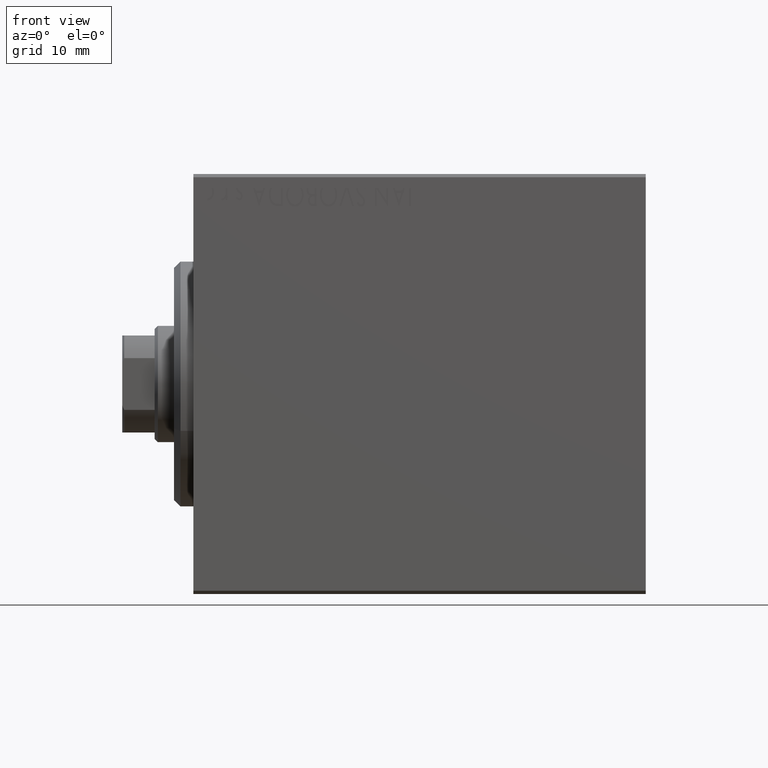
[diagram: clean part render]
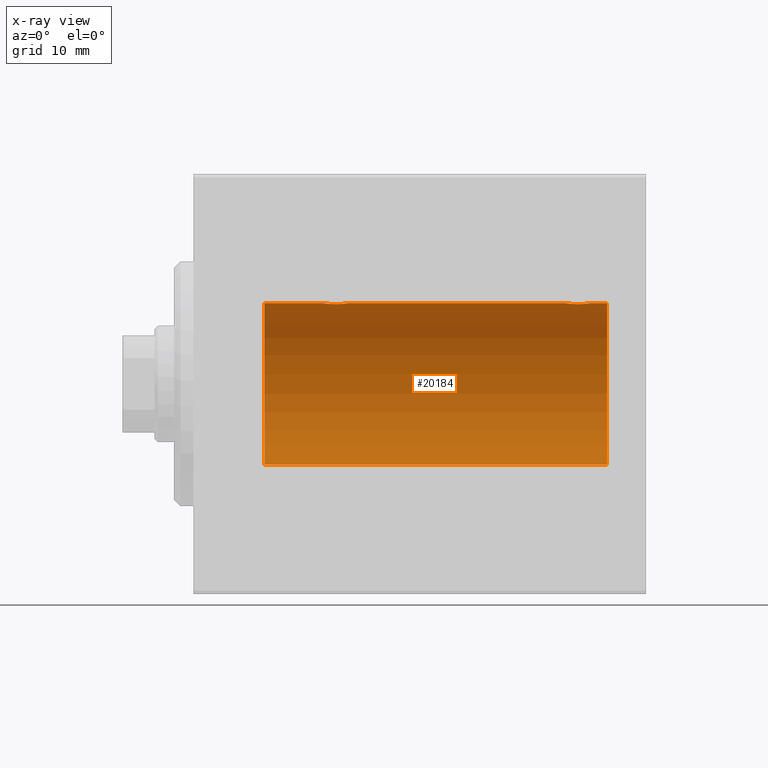
[diagram: x-ray — body ghosted, one internal face saturated and labeled with its STEP entity id]
A machine part, front view, then the same camera in x-ray: the body is ghosted and one INTERNAL B-rep face — a face not visible from any outside direction — is saturated and labeled: STEP entity #20184.
In plain terms, the highlighted cylindrical surface (partial cylindrical patch) has radius 12.5 mm, axis along (-1, -0, -0).
Its self-contained STEP definition (entity closure, byte-faithful):
#36 = CARTESIAN_POINT ( 'NONE',  ( 20.67897166499301775, 1.507394620545639441, 12.40913174964213361 ) ) ;
#251 = CARTESIAN_POINT ( 'NONE',  ( 20.78019209405420042, 1.590288205413970646, 12.39864157855465088 ) ) ;
#982 = CARTESIAN_POINT ( 'NONE',  ( 64.00000000000000000, 1.530808498934191521E-15, -12.50000000000000000 ) ) ;
#1736 = CARTESIAN_POINT ( 'NONE',  ( 59.23730537545403507, 1.986986967296537676, 12.34109209020652820 ) ) ;
#1955 = CARTESIAN_POINT ( 'NONE',  ( 58.85584766229707299, 1.897967064543087279, 12.35517291625592229 ) ) ;
#2589 = VERTEX_POINT ( 'NONE', #37533 ) ;
#2672 = ORIENTED_EDGE ( 'NONE', *, *, #18859, .T. ) ;
#2686 = ORIENTED_EDGE ( 'NONE', *, *, #41757, .F. ) ;
#2931 = CARTESIAN_POINT ( 'NONE',  ( 21.35584766229706588, 1.897967064543088833, 12.35517291625592051 ) ) ;
#3086 = VERTEX_POINT ( 'NONE', #982 ) ;
#3509 = CIRCLE ( 'NONE', #17038, 12.50000000000000000 ) ;
#3560 = VERTEX_POINT ( 'NONE', #8339 ) ;
#3665 = CARTESIAN_POINT ( 'NONE',  ( 24.00000000000000000, -4.527848004210791175E-16, 12.50000000000000000 ) ) ;
#4483 = DIRECTION ( 'NONE',  ( -1.000000000000000000, -0.000000000000000000, -0.000000000000000000 ) ) ;
#4697 = CARTESIAN_POINT ( 'NONE',  ( 10.99999999999999645, 1.530808498934191521E-15, -12.50000000000000000 ) ) ;
#4744 = CARTESIAN_POINT ( 'NONE',  ( 19.99999999999999645, -7.265724481447607133E-23, 12.50000000000000000 ) ) ;
#5083 = CARTESIAN_POINT ( 'NONE',  ( 58.61343686466983627, 1.797558627508994089, 12.37018026341338484 ) ) ;
#5196 = B_SPLINE_CURVE_WITH_KNOTS ( 'NONE', 3,
 ( #10059, #33631, #6943, #26972, #27405, #20733, #37192, #20511, #41183, #40962, #43867, #27628, #6277, #34072, #30518, #16948, #2931, #10275, #13623, #251, #36, #17170, #23625, #17388, #6723, #30739, #33399, #27191, #40518, #30080 ),
 .UNSPECIFIED., .F., .F.,
 ( 4, 2, 2, 2, 2, 2, 2, 2, 2, 2, 2, 2, 2, 2, 4 ),
 ( 4.399147420600248434E-19, 0.0003914362731607583874, 0.0007828725463215163412, 0.001174308819482274349, 0.001565745092643032249, 0.002348617638964548265, 0.003131490185286064497, 0.003522926458446828252, 0.003914362731607592440, 0.004305799004768355760, 0.004697235277929119081, 0.005088671551089882401, 0.005480107824250645722, 0.005871544097411409910, 0.006262980370572172363 ),
 .UNSPECIFIED. ) ;
#5310 = CARTESIAN_POINT ( 'NONE',  ( 58.17897166499302841, 1.507394620545639219, 12.40913174964213539 ) ) ;
#6040 = VECTOR ( 'NONE', #43684, 1000.000000000000000 ) ;
#6277 = CARTESIAN_POINT ( 'NONE',  ( 22.26211806331624743, 1.999901172190676757, 12.33897869807161563 ) ) ;
#6723 = CARTESIAN_POINT ( 'NONE',  ( 20.20257508083844300, 0.8868029758979382171, 12.46909283808506430 ) ) ;
#6895 = CARTESIAN_POINT ( 'NONE',  ( 61.29699211628619793, 0.8876934327478148701, 12.46903010196599659 ) ) ;
#6943 = CARTESIAN_POINT ( 'NONE',  ( 23.98698791483650794, 0.2624928479599913378, 12.49789934882883458 ) ) ;
#7108 = CARTESIAN_POINT ( 'NONE',  ( 61.00601633672791024, 1.322451657002079006, 12.43019346654084956 ) ) ;
#7542 = ORIENTED_EDGE ( 'NONE', *, *, #34732, .T. ) ;
#7773 = LINE ( 'NONE', #28021, #39864 ) ;
#7805 = CARTESIAN_POINT ( 'NONE',  ( 64.00000000000000000, 0.000000000000000000, 0.000000000000000000 ) ) ;
#8339 = CARTESIAN_POINT ( 'NONE',  ( 64.00000000000000000, 0.000000000000000000, 12.50000000000000000 ) ) ;
#8416 = CARTESIAN_POINT ( 'NONE',  ( 57.51309615233746086, 0.2633501011236094591, 12.49788564268283864 ) ) ;
#8857 = CARTESIAN_POINT ( 'NONE',  ( 57.56438225478149917, 0.5201193324741324453, 12.48983485452574982 ) ) ;
#8925 = CARTESIAN_POINT ( 'NONE',  ( 10.99999999999999645, 0.000000000000000000, 0.000000000000000000 ) ) ;
#8967 = EDGE_CURVE ( 'NONE', #21843, #2589, #15239, .T. ) ;
#9365 = DIRECTION ( 'NONE',  ( -1.000000000000000000, -0.000000000000000000, -0.000000000000000000 ) ) ;
#10059 = CARTESIAN_POINT ( 'NONE',  ( 24.00000000000000000, -4.527848004210791175E-16, 12.50000000000000000 ) ) ;
#10275 = CARTESIAN_POINT ( 'NONE',  ( 21.11343686466984693, 1.797558627508996532, 12.37018026341339194 ) ) ;
#10938 = DIRECTION ( 'NONE',  ( 0.000000000000000000, 0.000000000000000000, 1.000000000000000000 ) ) ;
#11761 = CARTESIAN_POINT ( 'NONE',  ( 57.60226968606340847, 0.6448065707253002321, 12.48394649977301540 ) ) ;
#13623 = CARTESIAN_POINT ( 'NONE',  ( 20.99664185700817498, 1.734998657226762386, 12.37922086519035680 ) ) ;
#13794 = CARTESIAN_POINT ( 'NONE',  ( 61.50000000000000711, 0.1323736289504353347, 12.50000000000000178 ) ) ;
#14231 = CARTESIAN_POINT ( 'NONE',  ( 61.48698791483653281, 0.2624928479599922815, 12.49789934882883458 ) ) ;
#15103 = CARTESIAN_POINT ( 'NONE',  ( 59.37007370639736337, 2.000049200055400878, 12.33895470450623222 ) ) ;
#15211 = VERTEX_POINT ( 'NONE', #19873 ) ;
#15239 = B_SPLINE_CURVE_WITH_KNOTS ( 'NONE', 3,
 ( #37367, #13794, #14231, #21123, #17338, #6895, #20462, #24012, #7108, #20679, #30911, #21978, #31985, #15103, #1736, #35126, #1955, #5083, #15317, #28668, #5310, #32431, #25547, #38453, #39097, #11761, #8857, #8416, #19096, #21771 ),
 .UNSPECIFIED., .F., .F.,
 ( 4, 2, 2, 2, 2, 2, 2, 2, 2, 2, 2, 2, 2, 2, 4 ),
 ( 7.010636526547347862E-19, 0.0003914362731607671695, 0.0007828725463215335800, 0.001174308819482300153, 0.001565745092643066510, 0.002348617638964585128, 0.003131490185286103529, 0.003522926458446862079, 0.003914362731607621063, 0.004305799004768380046, 0.004697235277929138163, 0.005088671551089898014, 0.005480107824250656998, 0.005871544097411415114, 0.006262980370572174098 ),
 .UNSPECIFIED. ) ;
#15317 = CARTESIAN_POINT ( 'NONE',  ( 58.49664185700819274, 1.734998657226764163, 12.37922086519035858 ) ) ;
#16948 = CARTESIAN_POINT ( 'NONE',  ( 21.48062649148445402, 1.935814255713573351, 12.34922241902463114 ) ) ;
#17038 = AXIS2_PLACEMENT_3D ( 'NONE', #8925, #19597, #26070 ) ;
#17170 = CARTESIAN_POINT ( 'NONE',  ( 20.49266449635678100, 1.321095788880537247, 12.43034574091277911 ) ) ;
#17338 = CARTESIAN_POINT ( 'NONE',  ( 61.39747729701806378, 0.6455696738844931559, 12.48390768591463384 ) ) ;
#17388 = CARTESIAN_POINT ( 'NONE',  ( 20.26529257602389222, 1.003863686549171019, 12.46009879577771606 ) ) ;
#18859 = EDGE_CURVE ( 'NONE', #2589, #34171, #22572, .T. ) ;
#19054 = VERTEX_POINT ( 'NONE', #4744 ) ;
#19096 = CARTESIAN_POINT ( 'NONE',  ( 57.50000000000000000, 0.1306394121199370428, 12.50000000000000000 ) ) ;
#19597 = DIRECTION ( 'NONE',  ( -1.000000000000000000, 0.000000000000000000, 0.000000000000000000 ) ) ;
#19873 = CARTESIAN_POINT ( 'NONE',  ( 10.99999999999999645, 0.000000000000000000, 12.50000000000000000 ) ) ;
#20184 = ADVANCED_FACE ( 'NONE', ( #24714 ), #24933, .F. ) ;
#20332 = AXIS2_PLACEMENT_3D ( 'NONE', #7805, #4483, #10938 ) ;
#20462 = CARTESIAN_POINT ( 'NONE',  ( 61.23553255438137910, 1.002494658017159423, 12.46021263690096958 ) ) ;
#20511 = CARTESIAN_POINT ( 'NONE',  ( 23.59036680009404918, 1.219754986802281005, 12.44082361696003325 ) ) ;
#20679 = CARTESIAN_POINT ( 'NONE',  ( 60.72966493873149574, 1.598680238462370617, 12.39873273758732353 ) ) ;
#20733 = CARTESIAN_POINT ( 'NONE',  ( 23.79699211628616240, 0.8876934327478146480, 12.46903010196599304 ) ) ;
#20978 = EDGE_CURVE ( 'NONE', #34171, #19054, #5196, .T. ) ;
#21123 = CARTESIAN_POINT ( 'NONE',  ( 61.43604351777364059, 0.5184196815546071591, 12.48990118705761354 ) ) ;
#21771 = CARTESIAN_POINT ( 'NONE',  ( 57.50000000000000000, -7.266434456262306043E-23, 12.50000000000000000 ) ) ;
#21843 = VERTEX_POINT ( 'NONE', #39697 ) ;
#21978 = CARTESIAN_POINT ( 'NONE',  ( 60.02563587170491388, 1.947190906025042967, 12.34781876294798408 ) ) ;
#22572 = LINE ( 'NONE', #30120, #6040 ) ;
#23561 = CARTESIAN_POINT ( 'NONE',  ( 64.00000000000000000, 0.000000000000000000, 0.000000000000000000 ) ) ;
#23625 = CARTESIAN_POINT ( 'NONE',  ( 20.41008591319371490, 1.220297236145720277, 12.44076681548080288 ) ) ;
#24012 = CARTESIAN_POINT ( 'NONE',  ( 61.09036680009405984, 1.219754986802282115, 12.44082361696003147 ) ) ;
#24165 = VECTOR ( 'NONE', #9365, 1000.000000000000000 ) ;
#24714 = FACE_OUTER_BOUND ( 'NONE', #27716, .T. ) ;
#24743 = CARTESIAN_POINT ( 'NONE',  ( 64.00000000000000000, 0.000000000000000000, 12.50000000000000000 ) ) ;
#24933 = CYLINDRICAL_SURFACE ( 'NONE', #20332, 12.50000000000000000 ) ;
#25547 = CARTESIAN_POINT ( 'NONE',  ( 57.91008591319372556, 1.220297236145716946, 12.44076681548080288 ) ) ;
#26070 = DIRECTION ( 'NONE',  ( 0.000000000000000000, 0.000000000000000000, 1.000000000000000000 ) ) ;
#26972 = CARTESIAN_POINT ( 'NONE',  ( 23.93604351777363348, 0.5184196815546062709, 12.48990118705761532 ) ) ;
#27191 = CARTESIAN_POINT ( 'NONE',  ( 20.01309615233744310, 0.2633501011236105693, 12.49788564268283864 ) ) ;
#27405 = CARTESIAN_POINT ( 'NONE',  ( 23.89747729701804602, 0.6455696738844928229, 12.48390768591463207 ) ) ;
#27446 = EDGE_CURVE ( 'NONE', #3560, #3086, #42371, .T. ) ;
#27628 = CARTESIAN_POINT ( 'NONE',  ( 22.52563587170489967, 1.947190906025044299, 12.34781876294798408 ) ) ;
#27716 = EDGE_LOOP ( 'NONE', ( #2686, #33119, #7542, #41783, #2672, #30046, #37070, #30913 ) ) ;
#28021 = CARTESIAN_POINT ( 'NONE',  ( 64.00000000000000000, 1.530808498934191521E-15, -12.50000000000000000 ) ) ;
#28074 = VERTEX_POINT ( 'NONE', #4697 ) ;
#28668 = CARTESIAN_POINT ( 'NONE',  ( 58.28019209405419332, 1.590288205413972866, 12.39864157855464732 ) ) ;
#30046 = ORIENTED_EDGE ( 'NONE', *, *, #20978, .T. ) ;
#30080 = CARTESIAN_POINT ( 'NONE',  ( 19.99999999999999645, -7.265724481447607133E-23, 12.50000000000000000 ) ) ;
#30120 = CARTESIAN_POINT ( 'NONE',  ( 64.00000000000000000, 0.000000000000000000, 12.50000000000000000 ) ) ;
#30518 = CARTESIAN_POINT ( 'NONE',  ( 21.73730537545402086, 1.986986967296538564, 12.34109209020652465 ) ) ;
#30739 = CARTESIAN_POINT ( 'NONE',  ( 20.10226968606341558, 0.6448065707253003431, 12.48394649977302073 ) ) ;
#30911 = CARTESIAN_POINT ( 'NONE',  ( 60.50683120447499164, 1.747608771958137908, 12.37764291807175354 ) ) ;
#30913 = ORIENTED_EDGE ( 'NONE', *, *, #37133, .T. ) ;
#30983 = LINE ( 'NONE', #24743, #35538 ) ;
#31985 = CARTESIAN_POINT ( 'NONE',  ( 59.76211806331624388, 1.999901172190677201, 12.33897869807161385 ) ) ;
#32431 = CARTESIAN_POINT ( 'NONE',  ( 57.99266449635677390, 1.321095788880536581, 12.43034574091277733 ) ) ;
#33119 = ORIENTED_EDGE ( 'NONE', *, *, #27446, .F. ) ;
#33399 = CARTESIAN_POINT ( 'NONE',  ( 20.06438225478150628, 0.5201193324741335555, 12.48983485452575337 ) ) ;
#33631 = CARTESIAN_POINT ( 'NONE',  ( 24.00000000000000355, 0.1323736289504353625, 12.50000000000000000 ) ) ;
#34072 = CARTESIAN_POINT ( 'NONE',  ( 21.87007370639734916, 2.000049200055400878, 12.33895470450623044 ) ) ;
#34171 = VERTEX_POINT ( 'NONE', #3665 ) ;
#34482 = EDGE_CURVE ( 'NONE', #19054, #15211, #30983, .T. ) ;
#34732 = EDGE_CURVE ( 'NONE', #3560, #21843, #36936, .T. ) ;
#35126 = CARTESIAN_POINT ( 'NONE',  ( 58.98062649148444336, 1.935814255713572241, 12.34922241902463291 ) ) ;
#35538 = VECTOR ( 'NONE', #38094, 1000.000000000000000 ) ;
#36287 = CARTESIAN_POINT ( 'NONE',  ( 64.00000000000000000, 0.000000000000000000, 12.50000000000000000 ) ) ;
#36936 = LINE ( 'NONE', #36287, #24165 ) ;
#37070 = ORIENTED_EDGE ( 'NONE', *, *, #34482, .T. ) ;
#37129 = DIRECTION ( 'NONE',  ( -1.000000000000000000, 0.000000000000000000, 0.000000000000000000 ) ) ;
#37133 = EDGE_CURVE ( 'NONE', #15211, #28074, #3509, .T. ) ;
#37192 = CARTESIAN_POINT ( 'NONE',  ( 23.73553255438136134, 1.002494658017157647, 12.46021263690096958 ) ) ;
#37367 = CARTESIAN_POINT ( 'NONE',  ( 61.50000000000000711, -7.215738317004035941E-16, 12.50000000000000000 ) ) ;
#37533 = CARTESIAN_POINT ( 'NONE',  ( 57.50000000000000000, -7.266434456262306043E-23, 12.50000000000000000 ) ) ;
#38094 = DIRECTION ( 'NONE',  ( -1.000000000000000000, -0.000000000000000000, -0.000000000000000000 ) ) ;
#38453 = CARTESIAN_POINT ( 'NONE',  ( 57.76529257602388157, 1.003863686549167022, 12.46009879577771429 ) ) ;
#39097 = CARTESIAN_POINT ( 'NONE',  ( 57.70257508083844300, 0.8868029758979379951, 12.46909283808506430 ) ) ;
#39697 = CARTESIAN_POINT ( 'NONE',  ( 61.50000000000000711, -7.215738317004035941E-16, 12.50000000000000000 ) ) ;
#39864 = VECTOR ( 'NONE', #41585, 1000.000000000000000 ) ;
#40251 = AXIS2_PLACEMENT_3D ( 'NONE', #23561, #37129, #40677 ) ;
#40518 = CARTESIAN_POINT ( 'NONE',  ( 20.00000000000000000, 0.1306394121199368485, 12.50000000000000000 ) ) ;
#40677 = DIRECTION ( 'NONE',  ( 0.000000000000000000, 0.000000000000000000, 1.000000000000000000 ) ) ;
#40962 = CARTESIAN_POINT ( 'NONE',  ( 23.22966493873148863, 1.598680238462369507, 12.39873273758732353 ) ) ;
#41183 = CARTESIAN_POINT ( 'NONE',  ( 23.50601633672791735, 1.322451657002076786, 12.43019346654085311 ) ) ;
#41585 = DIRECTION ( 'NONE',  ( -1.000000000000000000, -0.000000000000000000, -0.000000000000000000 ) ) ;
#41757 = EDGE_CURVE ( 'NONE', #3086, #28074, #7773, .T. ) ;
#41783 = ORIENTED_EDGE ( 'NONE', *, *, #8967, .T. ) ;
#42371 = CIRCLE ( 'NONE', #40251, 12.50000000000000000 ) ;
#43684 = DIRECTION ( 'NONE',  ( -1.000000000000000000, -0.000000000000000000, -0.000000000000000000 ) ) ;
#43867 = CARTESIAN_POINT ( 'NONE',  ( 23.00683120447499519, 1.747608771958141016, 12.37764291807175887 ) ) ;